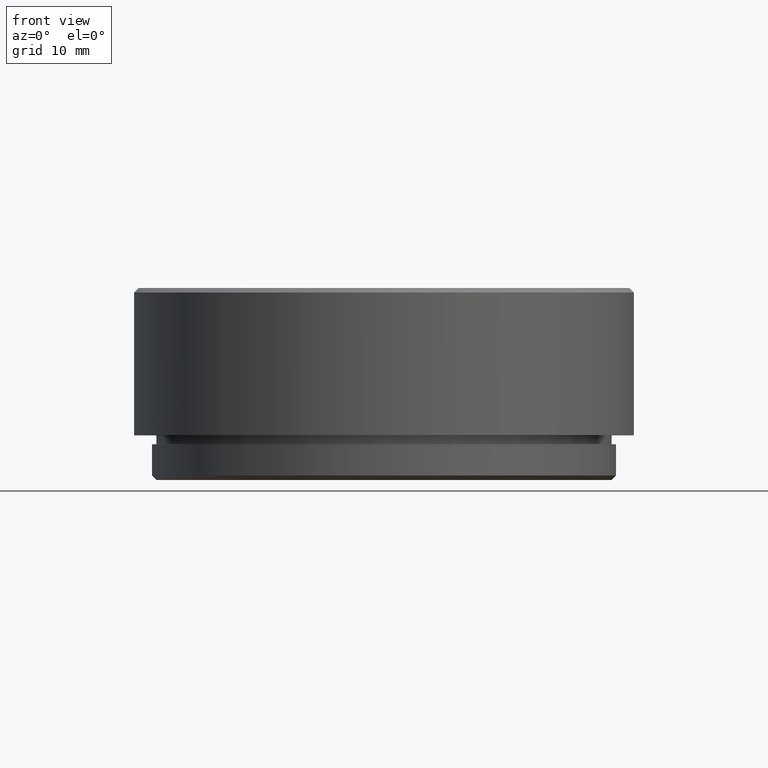
[diagram: clean part render]
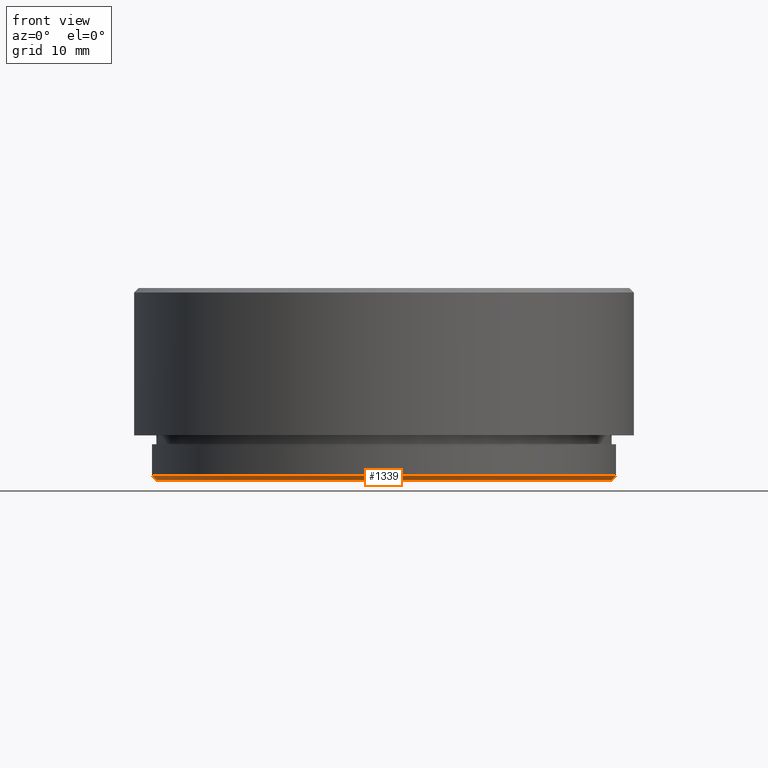
[diagram: same view with one face highlighted and labeled with its STEP entity id]
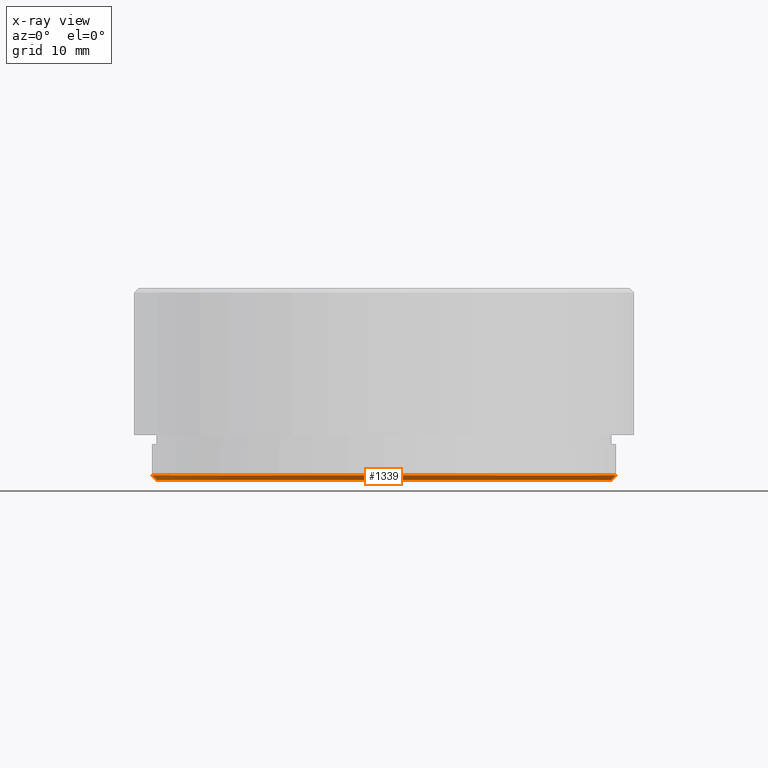
[diagram: x-ray of the same camera — body ghosted, the highlighted face saturated]
A machine part, front view. The second image highlights one B-rep face of the part: STEP entity #1339.
The next image is the same camera in x-ray: the body ghosted, the highlighted face saturated — about 0% of this face is hidden behind the body in this view.
In plain terms, the highlighted conical surface has half-angle 45 deg.
Its self-contained STEP definition (entity closure, byte-faithful):
#40 = CARTESIAN_POINT ( 'NONE',  ( -25.49999999999998934, 3.153465507804433615E-15, 0.000000000000000000 ) ) ;
#164 = EDGE_CURVE ( 'NONE', #1646, #480, #1609, .T. ) ;
#165 = DIRECTION ( 'NONE',  ( 0.7071067811865401342, 0.000000000000000000, 0.7071067811865549002 ) ) ;
#203 = DIRECTION ( 'NONE',  ( 1.000000000000000000, 0.000000000000000000, 0.000000000000000000 ) ) ;
#230 = DIRECTION ( 'NONE',  ( 0.000000000000000000, 0.000000000000000000, 1.000000000000000000 ) ) ;
#300 = VERTEX_POINT ( 'NONE', #40 ) ;
#387 = ORIENTED_EDGE ( 'NONE', *, *, #582, .T. ) ;
#422 = CARTESIAN_POINT ( 'NONE',  ( -26.00000000000000355, 0.000000000000000000, 0.5000000000000247580 ) ) ;
#442 = ORIENTED_EDGE ( 'NONE', *, *, #164, .F. ) ;
#469 = AXIS2_PLACEMENT_3D ( 'NONE', #768, #230, #1034 ) ;
#480 = VERTEX_POINT ( 'NONE', #983 ) ;
#566 = VERTEX_POINT ( 'NONE', #1093 ) ;
#582 = EDGE_CURVE ( 'NONE', #566, #480, #1515, .T. ) ;
#624 = CARTESIAN_POINT ( 'NONE',  ( 0.000000000000000000, 0.000000000000000000, 0.000000000000000000 ) ) ;
#715 = CARTESIAN_POINT ( 'NONE',  ( -25.49999999999998934, 3.122849337825749039E-15, 0.000000000000000000 ) ) ;
#745 = CARTESIAN_POINT ( 'NONE',  ( 0.000000000000000000, 0.000000000000000000, 0.000000000000000000 ) ) ;
#761 = CIRCLE ( 'NONE', #1211, 25.49999999999998934 ) ;
#768 = CARTESIAN_POINT ( 'NONE',  ( 0.000000000000000000, 0.000000000000000000, 0.5000000000000247580 ) ) ;
#827 = CONICAL_SURFACE ( 'NONE', #1048, 25.49999999999998934, 0.7853981633974378429 ) ;
#959 = ORIENTED_EDGE ( 'NONE', *, *, #1050, .F. ) ;
#983 = CARTESIAN_POINT ( 'NONE',  ( 26.00000000000000355, 3.184081677783118585E-15, 0.5000000000000247580 ) ) ;
#1004 = EDGE_LOOP ( 'NONE', ( #1057, #959, #387, #442 ) ) ;
#1005 = DIRECTION ( 'NONE',  ( 0.000000000000000000, 0.000000000000000000, 1.000000000000000000 ) ) ;
#1034 = DIRECTION ( 'NONE',  ( 1.000000000000000000, 0.000000000000000000, 0.000000000000000000 ) ) ;
#1048 = AXIS2_PLACEMENT_3D ( 'NONE', #745, #1005, #203 ) ;
#1050 = EDGE_CURVE ( 'NONE', #566, #300, #761, .T. ) ;
#1057 = ORIENTED_EDGE ( 'NONE', *, *, #1155, .F. ) ;
#1093 = CARTESIAN_POINT ( 'NONE',  ( 25.49999999999998934, 0.000000000000000000, 0.000000000000000000 ) ) ;
#1125 = LINE ( 'NONE', #715, #1322 ) ;
#1155 = EDGE_CURVE ( 'NONE', #300, #1646, #1125, .T. ) ;
#1211 = AXIS2_PLACEMENT_3D ( 'NONE', #624, #1439, #1717 ) ;
#1322 = VECTOR ( 'NONE', #1641, 1000.000000000000000 ) ;
#1339 = ADVANCED_FACE ( 'NONE', ( #1453 ), #827, .T. ) ;
#1357 = VECTOR ( 'NONE', #165, 1000.000000000000000 ) ;
#1378 = CARTESIAN_POINT ( 'NONE',  ( 25.49999999999998934, 0.000000000000000000, 0.000000000000000000 ) ) ;
#1439 = DIRECTION ( 'NONE',  ( -0.000000000000000000, -0.000000000000000000, -1.000000000000000000 ) ) ;
#1453 = FACE_OUTER_BOUND ( 'NONE', #1004, .T. ) ;
#1515 = LINE ( 'NONE', #1378, #1357 ) ;
#1609 = CIRCLE ( 'NONE', #469, 26.00000000000000355 ) ;
#1641 = DIRECTION ( 'NONE',  ( -0.7071067811865401342, 8.659560562354842879E-17, 0.7071067811865549002 ) ) ;
#1646 = VERTEX_POINT ( 'NONE', #422 ) ;
#1717 = DIRECTION ( 'NONE',  ( 1.000000000000000000, 0.000000000000000000, 0.000000000000000000 ) ) ;